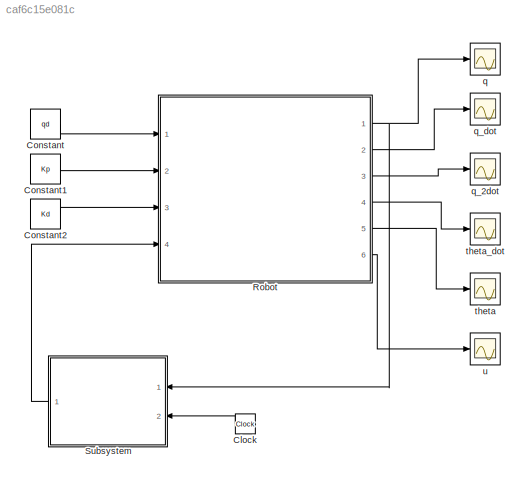
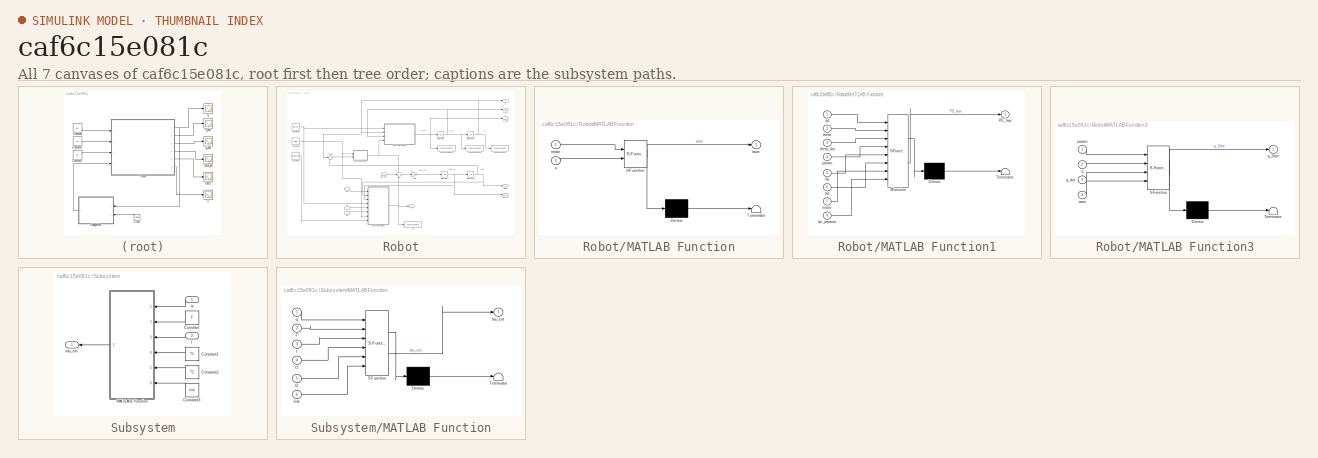
[diagram: thumbnail index - all 7 canvases of the model, root first then tree order]
MODEL slx_caf6c15e081c
KIND model
CONFIG AbsTol = auto
CONFIG EnableMultiTasking = off
CONFIG FixedStep = 0.001
CONFIG MaxStep = auto
CONFIG MinStep = auto
CONFIG RelTol = 1e-3
CONFIG SampleTimeConstraint = Unconstrained
CONFIG SolverName = ode8
CONFIG StartTime = 0.0
CONFIG StopTime = T
BLOCK [Clock] Clock
BLOCK [Constant] Constant
  Value = qd
  VectorParams1D = off
BLOCK [Constant] Constant1
  Value = Kp
  VectorParams1D = off
BLOCK [Constant] Constant2
  Value = Kd
  VectorParams1D = off
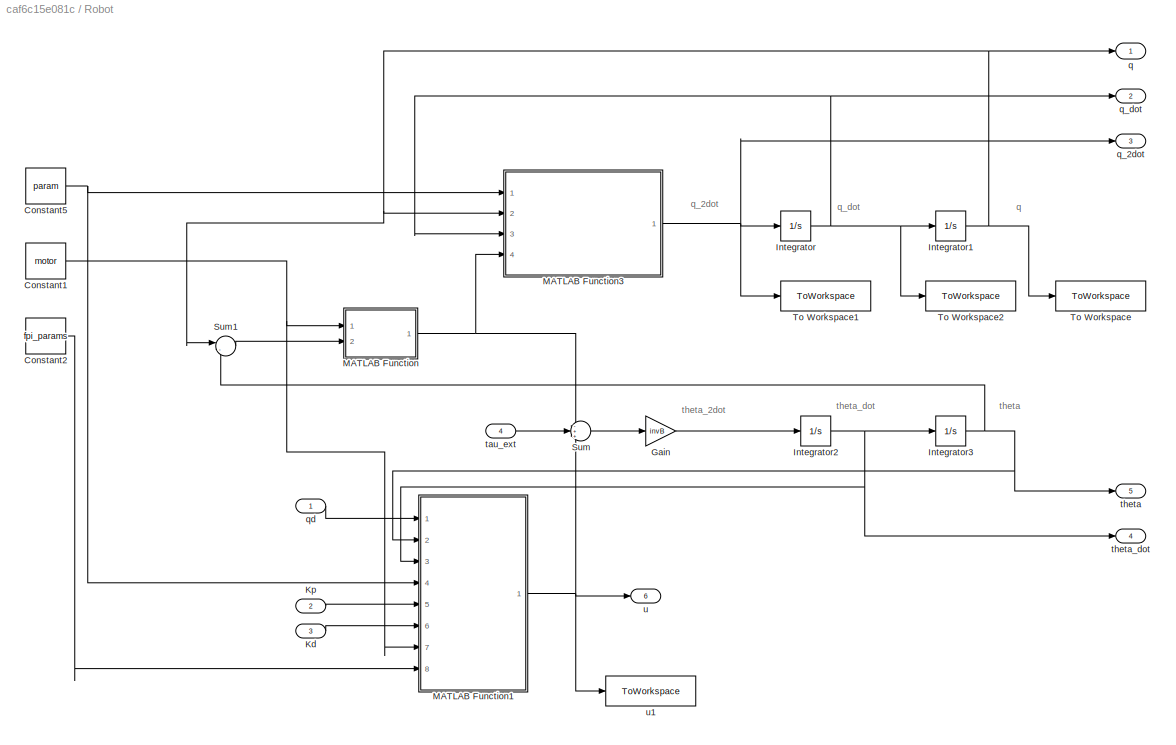
BLOCK [SubSystem] Robot
  Ports = [4, 6]
  RequestExecContextInheritance = off
BLOCK [Constant] Robot/Constant1
  Value = motor
  VectorParams1D = off
BLOCK [Constant] Robot/Constant2
  Value = fpi_params
  VectorParams1D = off
BLOCK [Constant] Robot/Constant5
  Value = param
  VectorParams1D = off
BLOCK [Gain] Robot/Gain
  Gain = invB
  Multiplication = Matrix(K*u) (u vector)
BLOCK [Integrator] Robot/Integrator
  InitialCondition = qd0
  Ports = [1, 1]
BLOCK [Integrator] Robot/Integrator1
  InitialCondition = q0
  Ports = [1, 1]
BLOCK [Integrator] Robot/Integrator2
  InitialCondition = thetad0
  Ports = [1, 1]
BLOCK [Integrator] Robot/Integrator3
  InitialCondition = theta0
  Ports = [1, 1]
BLOCK [Inport] Robot/Kd
  IconDisplay = Signal name
  Port = 3
BLOCK [Inport] Robot/Kp
  IconDisplay = Signal name
  Port = 2
BLOCK [SubSystem] Robot/MATLAB Function
  ErrorFcn = Stateflow.Translate.translate
  PermitHierarchicalResolution = ExplicitOnly
  Ports = [2, 1]
  RequestExecContextInheritance = off
  SFBlockType = MATLAB Function
  TreatAsAtomicUnit = on
BLOCK [Demux] Robot/MATLAB Function/ Demux 
  Outputs = 1
  Ports = [1, 1]
BLOCK [S-Function] Robot/MATLAB Function/ SFunction 
  EnableBusSupport = on
  FunctionName = sf_sfun
  PortCounts = [2 2]
  Ports = [2, 2]
  SFcnIsStateOwnerBlock = off
  SFunctionDeploymentMode = off
  Tag = Stateflow S-Function 7
BLOCK [Terminator] Robot/MATLAB Function/ Terminator 
BLOCK [Inport] Robot/MATLAB Function/motor
BLOCK [Outport] Robot/MATLAB Function/taue
BLOCK [Inport] Robot/MATLAB Function/u
  Port = 2
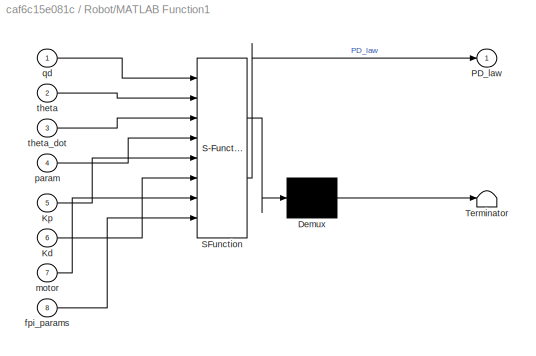
BLOCK [SubSystem] Robot/MATLAB Function1
  ErrorFcn = Stateflow.Translate.translate
  PermitHierarchicalResolution = ExplicitOnly
  Ports = [8, 1]
  RequestExecContextInheritance = off
  SFBlockType = MATLAB Function
  TreatAsAtomicUnit = on
BLOCK [Demux] Robot/MATLAB Function1/ Demux 
  Outputs = 1
  Ports = [1, 1]
BLOCK [S-Function] Robot/MATLAB Function1/ SFunction 
  EnableBusSupport = on
  FunctionName = sf_sfun
  PortCounts = [8 2]
  Ports = [8, 2]
  SFcnIsStateOwnerBlock = off
  SFunctionDeploymentMode = off
  Tag = Stateflow S-Function 1
BLOCK [Terminator] Robot/MATLAB Function1/ Terminator 
BLOCK [Inport] Robot/MATLAB Function1/Kd
  Port = 6
BLOCK [Inport] Robot/MATLAB Function1/Kp
  Port = 5
BLOCK [Outport] Robot/MATLAB Function1/PD_law
BLOCK [Inport] Robot/MATLAB Function1/fpi_params
  Port = 8
BLOCK [Inport] Robot/MATLAB Function1/motor
  Port = 7
BLOCK [Inport] Robot/MATLAB Function1/param
  Port = 4
BLOCK [Inport] Robot/MATLAB Function1/qd
BLOCK [Inport] Robot/MATLAB Function1/theta
  Port = 2
BLOCK [Inport] Robot/MATLAB Function1/theta_dot
  Port = 3
BLOCK [SubSystem] Robot/MATLAB Function3
  ErrorFcn = Stateflow.Translate.translate
  PermitHierarchicalResolution = ExplicitOnly
  Ports = [4, 1]
  RequestExecContextInheritance = off
  SFBlockType = MATLAB Function
  TreatAsAtomicUnit = on
BLOCK [Demux] Robot/MATLAB Function3/ Demux 
  Outputs = 1
  Ports = [1, 1]
BLOCK [S-Function] Robot/MATLAB Function3/ SFunction 
  EnableBusSupport = on
  FunctionName = sf_sfun
  PortCounts = [4 2]
  Ports = [4, 2]
  SFcnIsStateOwnerBlock = off
  SFunctionDeploymentMode = off
  Tag = Stateflow S-Function 4
BLOCK [Terminator] Robot/MATLAB Function3/ Terminator 
BLOCK [Inport] Robot/MATLAB Function3/param
BLOCK [Inport] Robot/MATLAB Function3/q
  Port = 2
BLOCK [Outport] Robot/MATLAB Function3/q_2dot
BLOCK [Inport] Robot/MATLAB Function3/q_dot
  Port = 3
BLOCK [Inport] Robot/MATLAB Function3/taue
  Port = 4
BLOCK [Sum] Robot/Sum
  Inputs = -++
  Ports = [3, 1]
BLOCK [Sum] Robot/Sum1
  Inputs = |-+
  Ports = [2, 1]
BLOCK [ToWorkspace] Robot/To Workspace
  FixptAsFi = on
  MaxDataPoints = inf
  Ports = [1]
  SampleTime = -1
  VariableName = q
BLOCK [ToWorkspace] Robot/To Workspace1
  FixptAsFi = on
  MaxDataPoints = inf
  Ports = [1]
  SampleTime = -1
  VariableName = q_2dot
BLOCK [ToWorkspace] Robot/To Workspace2
  FixptAsFi = on
  MaxDataPoints = inf
  Ports = [1]
  SampleTime = -1
  VariableName = q_dot
BLOCK [Outport] Robot/q
  IconDisplay = Port number and signal name
BLOCK [Outport] Robot/q_2dot
  Port = 3
BLOCK [Outport] Robot/q_dot
  IconDisplay = Port number and signal name
  Port = 2
BLOCK [Inport] Robot/qd
  IconDisplay = Signal name
BLOCK [Inport] Robot/tau_ext
  Port = 4
BLOCK [Outport] Robot/theta
  IconDisplay = Port number and signal name
  Port = 5
BLOCK [Outport] Robot/theta_dot 
  IconDisplay = Port number and signal name
  Port = 4
BLOCK [Outport] Robot/u
  Port = 6
BLOCK [ToWorkspace] Robot/u1
  FixptAsFi = on
  MaxDataPoints = inf
  Ports = [1]
  SampleTime = -1
  VariableName = u
BLOCK [SubSystem] Subsystem
  Ports = [2, 1]
  RequestExecContextInheritance = off
BLOCK [Constant] Subsystem/Constant
  Value = F
  VectorParams1D = off
BLOCK [Constant] Subsystem/Constant1
  Value = T1
  VectorParams1D = off
BLOCK [Constant] Subsystem/Constant2
  Value = T2
  VectorParams1D = off
BLOCK [Constant] Subsystem/Constant3
  Value = link
  VectorParams1D = off
BLOCK [SubSystem] Subsystem/MATLAB Function
  ErrorFcn = Stateflow.Translate.translate
  PermitHierarchicalResolution = ExplicitOnly
  Ports = [6, 1]
  RequestExecContextInheritance = off
  SFBlockType = MATLAB Function
  TreatAsAtomicUnit = on
BLOCK [Demux] Subsystem/MATLAB Function/ Demux 
  Outputs = 1
  Ports = [1, 1]
BLOCK [S-Function] Subsystem/MATLAB Function/ SFunction 
  EnableBusSupport = on
  FunctionName = sf_sfun
  PortCounts = [6 2]
  Ports = [6, 2]
  SFcnIsStateOwnerBlock = off
  SFunctionDeploymentMode = off
  Tag = Stateflow S-Function 8
BLOCK [Terminator] Subsystem/MATLAB Function/ Terminator 
BLOCK [Inport] Subsystem/MATLAB Function/F
  Port = 2
BLOCK [Inport] Subsystem/MATLAB Function/link
  Port = 6
BLOCK [Inport] Subsystem/MATLAB Function/q
BLOCK [Inport] Subsystem/MATLAB Function/t
  Port = 3
BLOCK [Inport] Subsystem/MATLAB Function/t1
  Port = 4
BLOCK [Inport] Subsystem/MATLAB Function/t2
  Port = 5
BLOCK [Outport] Subsystem/MATLAB Function/tau_ext
BLOCK [Inport] Subsystem/q
BLOCK [Inport] Subsystem/t
  Port = 2
BLOCK [Outport] Subsystem/tau_ext
BLOCK [Scope] q
  Floating = off
  NumInputPorts = 1
  Ports = [1]
  ScopeSpecificationString = Simulink.scopes.TimeScopeBlockCfg('CurrentConfiguration', extmgr.ConfigurationSet(extmgr.Configuration('Core','General UI',true),extmgr.Configuration('Core','Source UI',true),extmgr.Configuration('Sources','WiredSimulink',true),extmgr.Configuration('Visuals','Time Domain',true,'SerializedDisplays',{struct('MinYLimReal','-0.85761','MaxYLimReal','1.25884','YLabelReal','','MinYLimMag','0.00000','MaxY...<+1409ch>
BLOCK [Scope] q_2dot
  Floating = off
  NumInputPorts = 1
  Ports = [1]
  ScopeSpecificationString = Simulink.scopes.TimeScopeBlockCfg('CurrentConfiguration', extmgr.ConfigurationSet(extmgr.Configuration('Core','General UI',true),extmgr.Configuration('Core','Source UI',true),extmgr.Configuration('Sources','WiredSimulink',true,'DataLoggingVariableName','ScopeData4'),extmgr.Configuration('Visuals','Time Domain',true,'SerializedDisplays',{struct('MinYLimReal','-11.37382','MaxYLimReal','12.59705','YL...<+1442ch>
BLOCK [Scope] q_dot
  Floating = off
  NumInputPorts = 1
  Ports = [1]
  ScopeSpecificationString = Simulink.scopes.TimeScopeBlockCfg('CurrentConfiguration', extmgr.ConfigurationSet(extmgr.Configuration('Core','General UI',true),extmgr.Configuration('Core','Source UI',true),extmgr.Configuration('Sources','WiredSimulink',true,'DataLoggingVariableName','ScopeData1'),extmgr.Configuration('Visuals','Time Domain',true,'SerializedDisplays',{struct('MinYLimReal','-1.12609','MaxYLimReal','1.05036','YLab...<+1392ch>
BLOCK [Scope] theta
  Floating = off
  NumInputPorts = 1
  Ports = [1]
  ScopeSpecificationString = Simulink.scopes.TimeScopeBlockCfg('CurrentConfiguration', extmgr.ConfigurationSet(extmgr.Configuration('Core','General UI',true),extmgr.Configuration('Core','Source UI',true),extmgr.Configuration('Sources','WiredSimulink',true,'DataLoggingVariableName','ScopeData2'),extmgr.Configuration('Visuals','Time Domain',true,'SerializedDisplays',{struct('MinYLimReal','-1.05426','MaxYLimReal','1.63432','YLab...<+1392ch>
BLOCK [Scope] theta_dot
  Floating = off
  NumInputPorts = 1
  Ports = [1]
  ScopeSpecificationString = Simulink.scopes.TimeScopeBlockCfg('CurrentConfiguration', extmgr.ConfigurationSet(extmgr.Configuration('Core','General UI',true),extmgr.Configuration('Core','Source UI',true),extmgr.Configuration('Sources','WiredSimulink',true,'DataLoggingVariableName','ScopeData3'),extmgr.Configuration('Visuals','Time Domain',true,'SerializedDisplays',{struct('MinYLimReal','-1.16838','MaxYLimReal','1.17111','YLab...<+1421ch>
BLOCK [Scope] u
  Floating = off
  NumInputPorts = 1
  Ports = [1]
  ScopeSpecificationString = Simulink.scopes.TimeScopeBlockCfg('CurrentConfiguration', extmgr.ConfigurationSet(extmgr.Configuration('Core','General UI',true),extmgr.Configuration('Core','Source UI',true),extmgr.Configuration('Sources','WiredSimulink',true,'DataLoggingVariableName','ScopeData5'),extmgr.Configuration('Visuals','Time Domain',true,'SerializedDisplays',{struct('MinYLimReal','-142.68186','MaxYLimReal','946.36195','...<+1495ch>
ANNOTATION Robot: q
ANNOTATION Robot: q_2dot
ANNOTATION Robot: q_dot
ANNOTATION Robot: theta
ANNOTATION Robot: theta_2dot
ANNOTATION Robot: theta_dot
LINE Clock:1 -> Subsystem:2
LINE Constant1:1 -> Robot:2
LINE Constant2:1 -> Robot:3
LINE Constant:1 -> Robot:1
NET Robot/Constant1:1 -> Robot/MATLAB Function1:7, Robot/MATLAB Function:1
LINE Robot/Constant2:1 -> Robot/MATLAB Function1:8
NET Robot/Constant5:1 -> Robot/MATLAB Function1:4, Robot/MATLAB Function3:1
LINE Robot/Gain:1 -> Robot/Integrator2:1
NET Robot/Integrator1:1 -> Robot/MATLAB Function3:2, Robot/Sum1:1, Robot/To Workspace:1, Robot/q:1
NET Robot/Integrator2:1 -> Robot/Integrator3:1, Robot/MATLAB Function1:3, Robot/theta_dot :1
NET Robot/Integrator3:1 -> Robot/MATLAB Function1:2, Robot/Sum1:2, Robot/theta:1
NET Robot/Integrator:1 -> Robot/Integrator1:1, Robot/MATLAB Function3:3, Robot/To Workspace2:1, Robot/q_dot:1
LINE Robot/Kd:1 -> Robot/MATLAB Function1:6
LINE Robot/Kp:1 -> Robot/MATLAB Function1:5
NET Robot/MATLAB Function1:1 -> Robot/Sum:3, Robot/u1:1, Robot/u:1
NET Robot/MATLAB Function3:1 -> Robot/Integrator:1, Robot/To Workspace1:1, Robot/q_2dot:1
NET Robot/MATLAB Function:1 -> Robot/MATLAB Function3:4, Robot/Sum:1
LINE Robot/Sum1:1 -> Robot/MATLAB Function:2
LINE Robot/Sum:1 -> Robot/Gain:1
LINE Robot/qd:1 -> Robot/MATLAB Function1:1
LINE Robot/tau_ext:1 -> Robot/Sum:2
NET Robot:1 -> Subsystem:1, q:1
LINE Robot:2 -> q_dot:1
LINE Robot:3 -> q_2dot:1
LINE Robot:4 -> theta_dot:1
LINE Robot:5 -> theta:1
LINE Robot:6 -> u:1
LINE Subsystem/Constant1:1 -> Subsystem/MATLAB Function:4
LINE Subsystem/Constant2:1 -> Subsystem/MATLAB Function:5
LINE Subsystem/Constant3:1 -> Subsystem/MATLAB Function:6
LINE Subsystem/Constant:1 -> Subsystem/MATLAB Function:2
LINE Subsystem/MATLAB Function:1 -> Subsystem/tau_ext:1
LINE Subsystem/q:1 -> Subsystem/MATLAB Function:1
LINE Subsystem/t:1 -> Subsystem/MATLAB Function:3
LINE Subsystem:1 -> Robot:4
note: NET lines group one-source signal fan-out (src -> all destinations, sorted); 1:1 wires keep LINE
CHART Robot/MATLAB Function1 states=1 transitions=1
  STATE_LABEL 'eML_blk_kernel()'
  STATE_LABEL 'SCRIPT:\nfunction PD_law = fcn(qd, theta, theta_dot, param, Kp, Kd, motor, fpi_params)\n\nq1 = qd(1);\nq2 = qd(2);\nq3 = qd(3);\n\n% masses of the links\nm1 = param(1);\nm2 = m1;\nm3 = m1;\n\n% masses of the motors\nm1m = param(2);\nm2m = m1m;\nm3m = m1m;\n\n% distance from the CoMs\nd1 = param(3);\nd2 = d1;\nd3 = d1;\n\n% inertia of the links\nI1 = param(4);\nI2 = I1;\nI3 = I1;\n\n% acceleration of gravity\ng0 = param(5);\n\n...<+1902ch>'
CHART Robot/MATLAB Function3 states=1 transitions=1
  STATE_LABEL 'eML_blk_kernel()'
  STATE_LABEL 'SCRIPT:\nfunction q_2dot = q_2dot(param, q, q_dot, taue)\n%% Initialization of the variables\n\nq1 = q(1);\nq2 = q(2);\nq3 = q(3);\n\nq1d = q_dot(1);\nq2d = q_dot(2);\nq3d = q_dot(3);\n\n% masses of the links\nm1 = param(1);\nm2 = m1;\nm3 = m1;\n\n% masses of the motors\nm1m = param(2);\nm2m = m1m;\nm3m = m1m;\n\n% distance from the CoMs\nd1 = param(3);\nd2 = d1;\nd3 = d1;\n\n% inertia of the links\nI1 = param(4);\nI2 = I1;\nI...<+1687ch>'
CHART Robot/MATLAB Function states=1 transitions=1
  STATE_LABEL 'eML_blk_kernel()'
  STATE_LABEL 'SCRIPT:\nfunction taue = fcn(motor, u)\n\nk = motor(2);\n\n% elastic torque\ntaue = k*[u(1)+u(1)^3; u(2)+u(2)^3; u(3)+u(3)^3];\n\n'
CHART Subsystem/MATLAB Function states=1 transitions=1
  STATE_LABEL 'eML_blk_kernel()'
  STATE_LABEL 'SCRIPT:\nfunction tau_ext = tau_ext(q, F, t, t1, t2, link)\n\ntau_ext = zeros(3,1);\n\ns1 = sin(q(1));\ns12 = sin(q(1)+q(2));\ns123 = sin(q(1)+q(2)+q(3));\nc1 = cos(q(1));\nc12 = cos(q(1)+q(2));\nc123 = cos(q(1)+q(2)+q(3));\nJ = zeros(2, 3);\n\n% choose the particular jacobian coordingly to where the external force\n% acts\nswitch link\n    case 1\n        J = 0.5*[-s1 0 0; c1 0 0];\n    case 2\n        J = 0.5*[-s1...<+162ch>'
CHART  states=0 transitions=0
CHART  states=0 transitions=0
CHART  states=0 transitions=0
CHART  states=0 transitions=0
